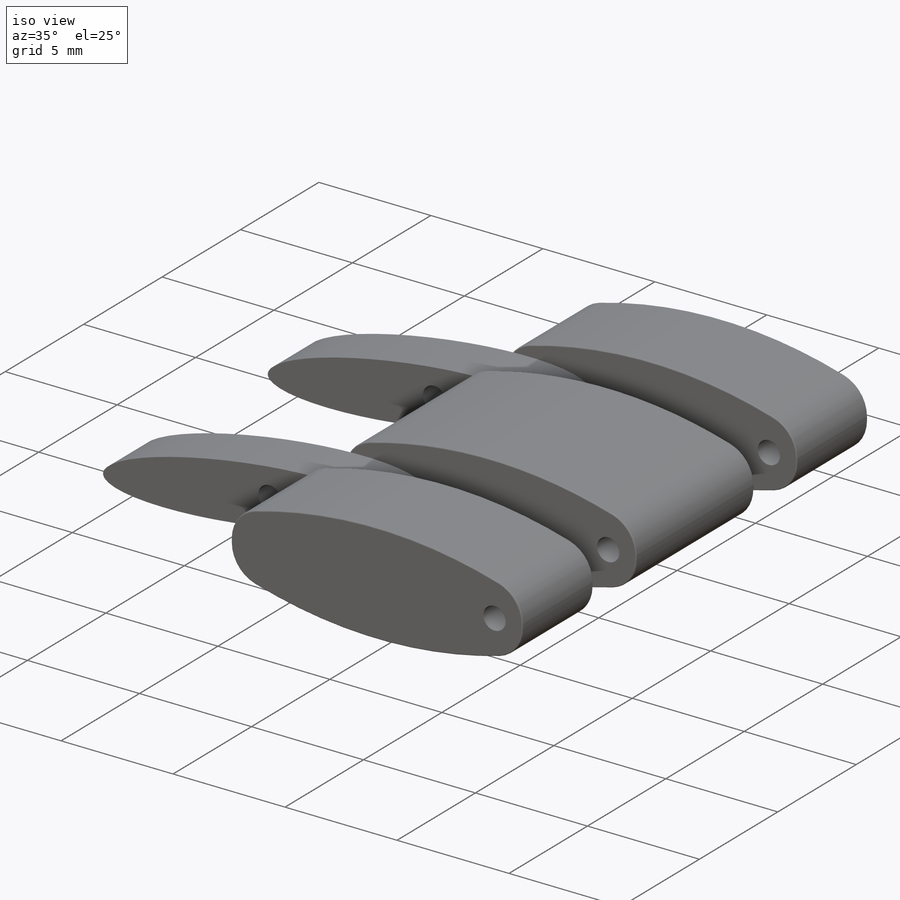
[diagram: iso view]
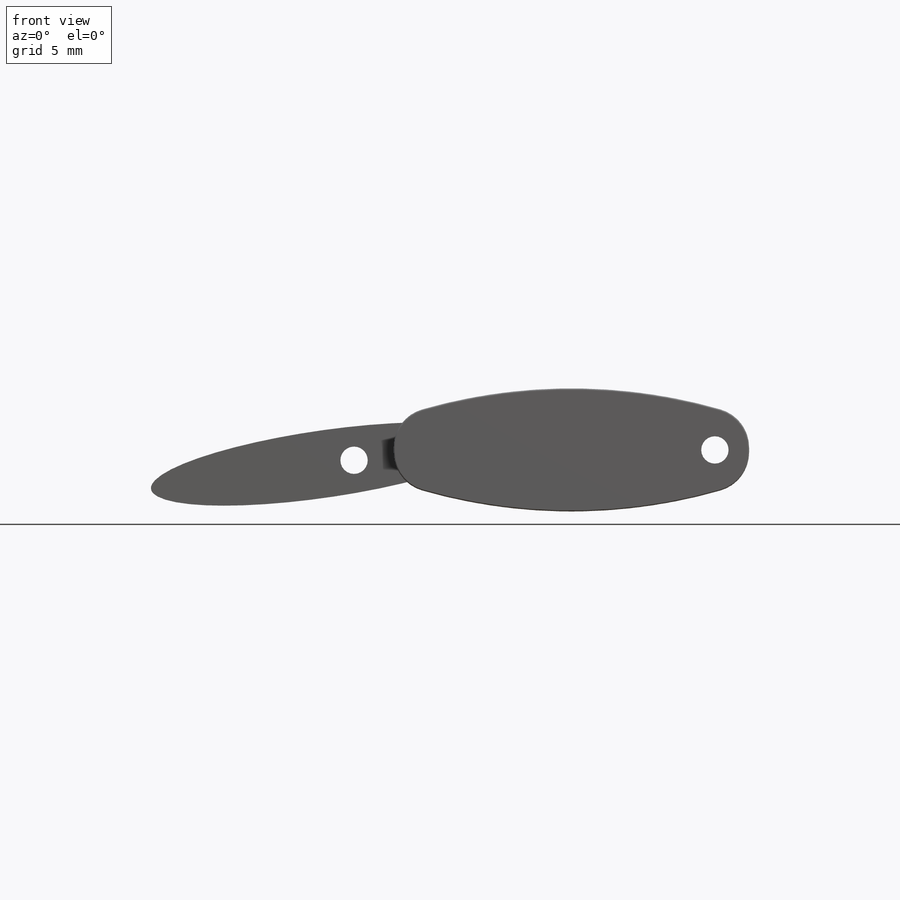
[diagram: front view]
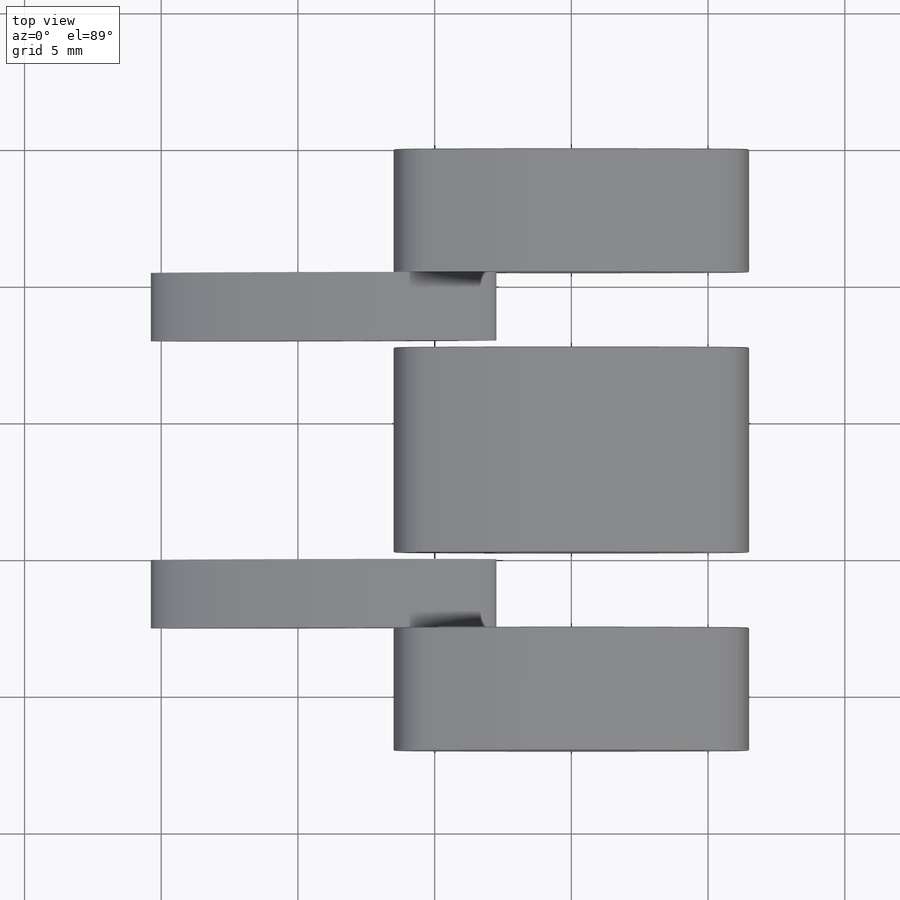
[diagram: top view]
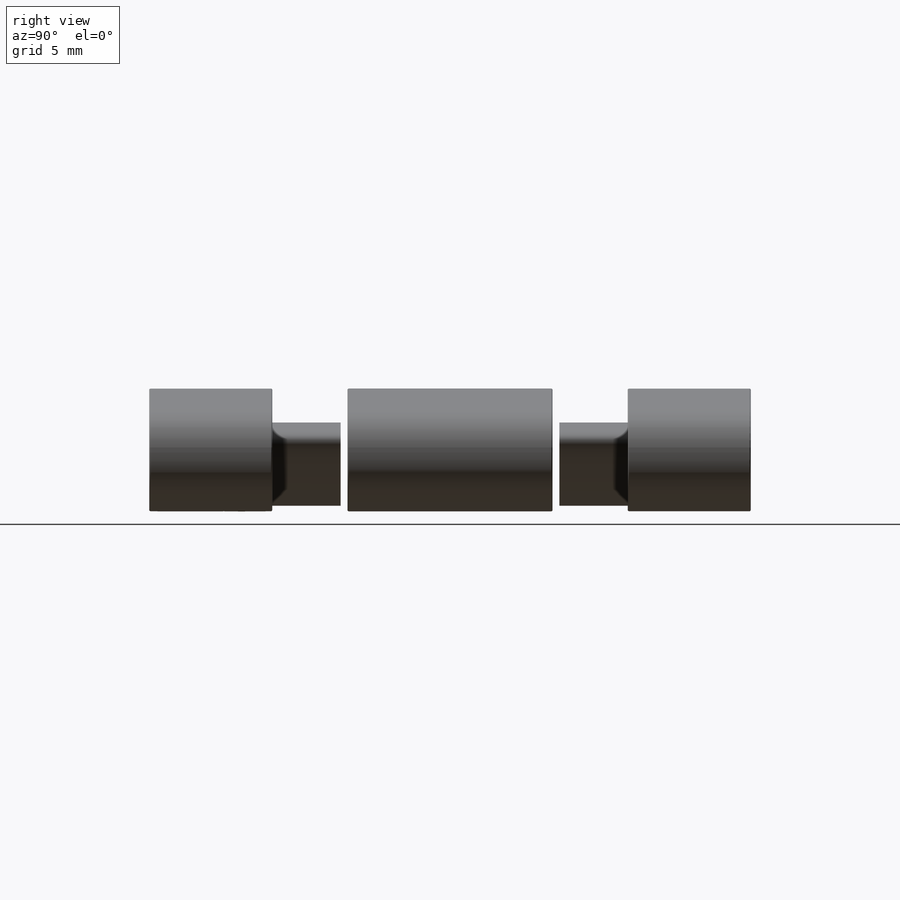
[diagram: right view]
SOLIDWORKS PART (.sldprt)
format: sldprt  version: not decoded by parser v0  size: 549,888 bytes
history: native  units: mm
features: sketch x8, cut_extrude x5, fillet x4, extrude x3, material x1 (+11 scaffold rows collapsed)
feature tree (32):
  scaffold x11  (default folders/planes/origin — collapsed)
  material  "Material <not specified>"
  sketch  "Sketch1"  dims[D1=13.0mm D2=6.5mm D3=4.5mm D4=2.25mm D5=1.1mm D6=1.1mm D7=1.1mm D8=1.1mm]
  extrude  "Boss-Extrude1"  Depth=22mm
  sketch  "Sketch2"  dims[D1=4.5mm D2=4.5mm D3=2.75mm D4=2.75mm]
  cut_extrude  "Cut-Extrude1"  Depth=22mm
  sketch  "Sketch3"  dims[D1=1.0mm D2=1.0mm D3=5.25mm D4=5.25mm]
  cut_extrude  "Cut-Extrude2"  Depth=21mm
  fillet  "Fillet1"  Radius=0.05mm
  fillet  "Fillet2"  Radius=0.05mm
  fillet  "Fillet3"  Radius=0.05mm
  sketch  "Sketch4"  dims[D1=1.0mm]
  cut_extrude  "Cut-Extrude3"  Depth=60mm
  sketch  "Sketch6"
  extrude  "Boss-Extrude2"  Depth=2.5mm
  extrude  "Boss-Extrude3"  [1 undecoded]
  sketch  "Sketch6<2>"  dims[D1=2.5mm D19=17.5mm]
  sketch  "Sketch7"  dims[D1=1.0mm]
  cut_extrude  "Cut-Extrude6"  Depth=22.5mm
  sketch  "Sketch8"  dims[D1=0.4mm D2=1.5mm D3=0.25mm D4=0.25mm]
  cut_extrude  "Cut-Extrude7"  Depth=0.2mm
  fillet  "Fillet4"  Radius=0.02mm
decode coverage: 18 of 20 modeling features carry decoded parameters
note: 1 parameter value undecoded
note: suppression state not decoded; provenance and decode notes live in map.json
